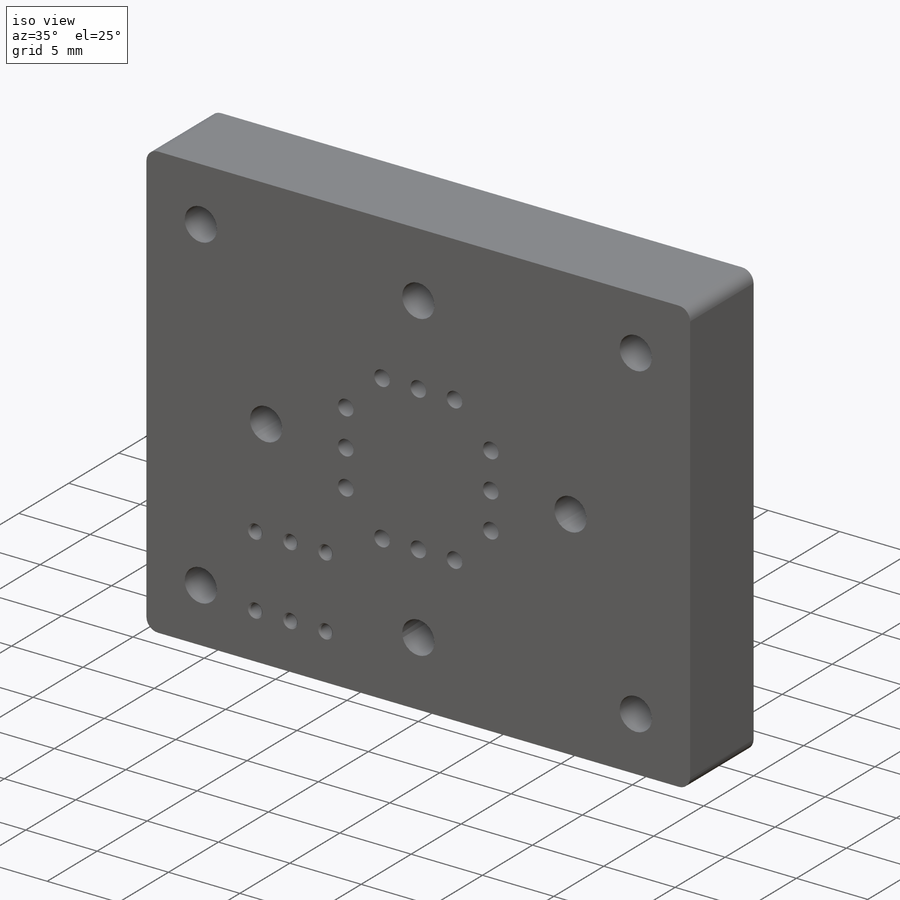
[diagram: iso view]
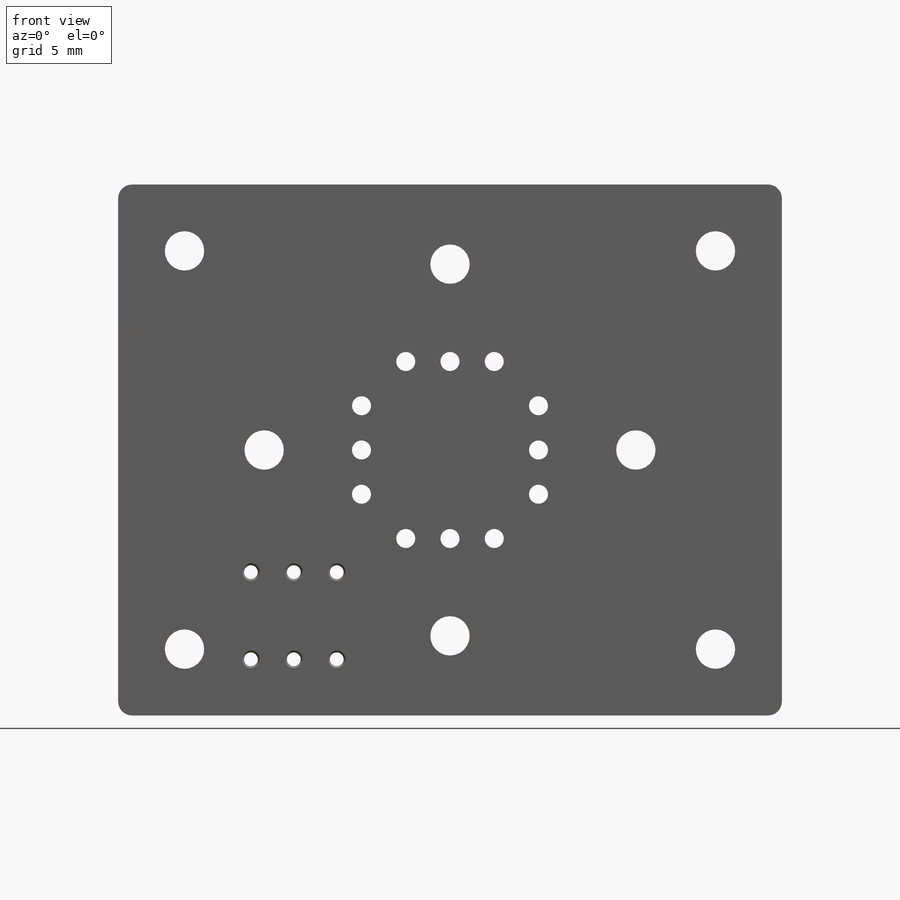
[diagram: front view]
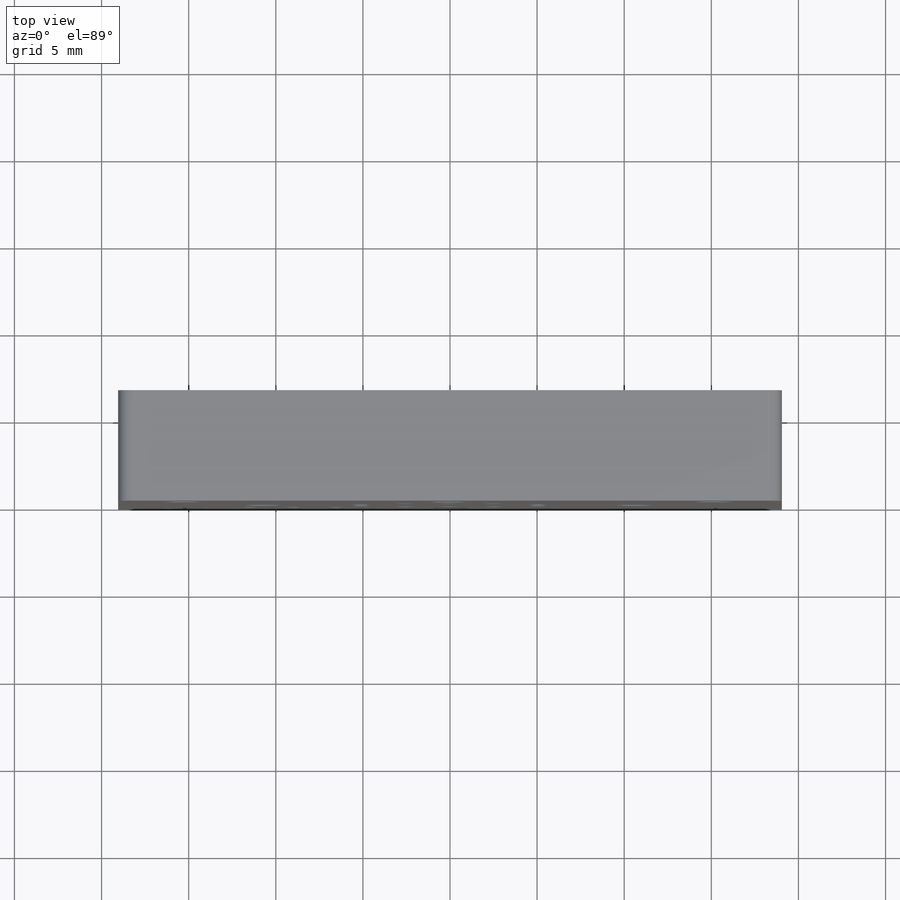
[diagram: top view]
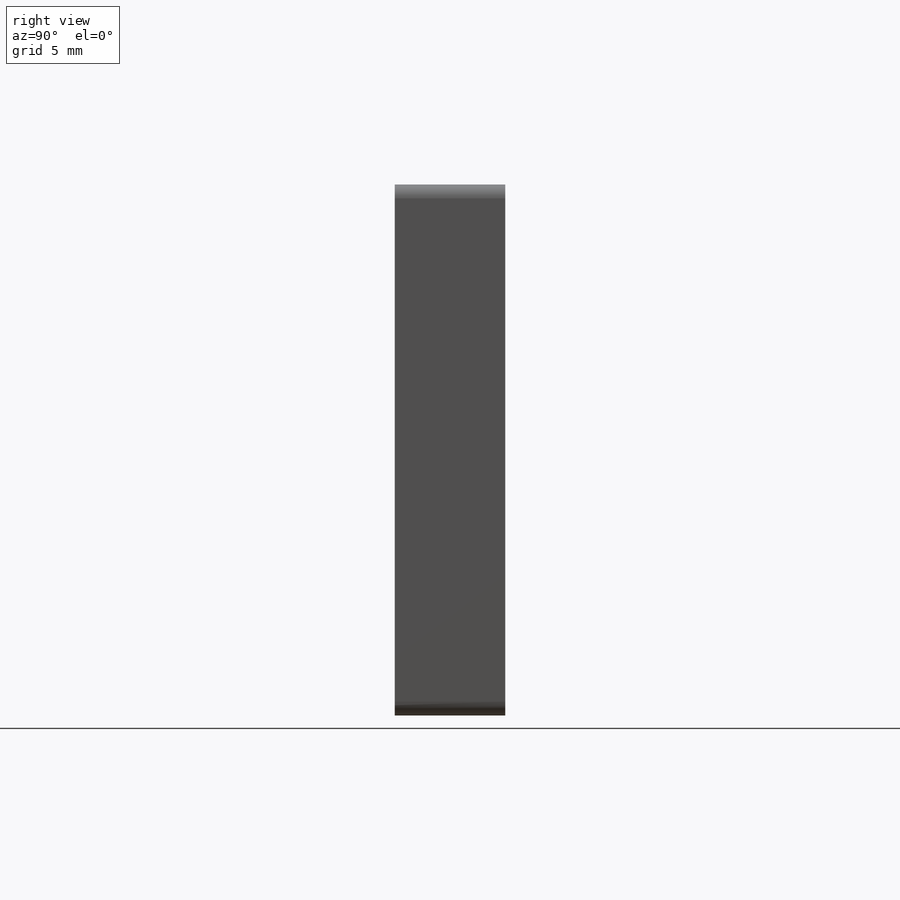
[diagram: right view]
SOLIDWORKS PART (.sldprt)
format: sldprt  version: not decoded by parser v0  size: 444,416 bytes
history: native  units: mm
features: sketch x9, pattern_circular x7, chamfer x6, hole x4, material x1, extrude x1, fillet x1 (+16 scaffold rows collapsed)
feature tree (45):
  scaffold x16  (default folders/planes/origin — collapsed)
  material  "PEEK"
  sketch  "Sketch1"  dims[D1=38.1mm D2=30.48mm]
  extrude  "Boss-Extrude1"  Depth=6.35mm
  hole  "#57 (0.043) Diameter Hole1"  Diameter=1.0922mm Depth=6.35mm
  sketch  "Sketch3"  dims[D1=2.54mm D2=5.08mm]
  sketch  "Sketch2"  dims[hole-wizard template sketch: 59 standard entries collapsed; hole parameters kept: c18.Thru Hole Dia.=1.0922mm c18.Thru Hole Depth=6.35mm]
  hole  "#4-40 Tapped Hole2"  Diameter=2.2606mm Depth=6.35mm
  sketch  "Sketch5"  dims[c1.D1=9.525mm c1.D2=~21.653904mm c2.D2=45.0deg c2.D3=9.525mm c2.D4=9.525mm c3.D3=12.7mm c3.D4=12.7mm c3.D5=12.7mm c3.D2=15.24mm c4.D3=11.43mm c4.D4=~33.261273mm]
  sketch  "Sketch4"  dims[hole-wizard template sketch: 60 standard entries collapsed; hole parameters kept: c18.Thru Tap Drill Depth=6.35mm]
  pattern_circular  "CirPattern1"  Count=4 Angle=90deg
  hole  "1/32 (0.03125) Diameter Hole1"  Diameter=0.79375mm Depth=6.35mm
  sketch  "Sketch9"  dims[D1=6.5024mm D2=7.0104mm D3=2.4638mm D4=5.0038mm]
  sketch  "Sketch8"  dims[hole-wizard template sketch: 46 standard entries collapsed; hole parameters kept: c15.Thru Hole Dia.=~0.79375mm c15.Thru Hole Depth=6.35mm c15.Near C'Sink Dia.=1.016mm c15.D4=~3.666174mm c15.Near C'Sink Angle=90.0deg c15.Far C'Sink Dia.=1.016mm c15.D6=~9.919017mm c15.Far C'Sink Angle=90.0deg]
  hole  "#4-40 Tapped Hole3"  Diameter=2.2606mm Depth=6.35mm
  sketch  "Sketch11"  dims[D1=10.668mm D2=4.0]
  sketch  "Sketch10"  dims[hole-wizard template sketch: 60 standard entries collapsed; hole parameters kept: c18.Thru Tap Drill Depth=6.35mm]
  fillet  "Fillet1"  Radius=0.79375mm
  chamfer  "Chamfer1"  Distance=0.254mm Angle=45deg
  pattern_circular  "Axis2"  Diameter=0.254mm Width=0 Depth=0 StubLength=2.54mm  [2 undecoded]
  chamfer  "CPoint2"  [1 undecoded]
  pattern_circular  "Axis3"  Diameter=0.254mm Width=0 Depth=0 StubLength=2.54mm  [2 undecoded]
  chamfer  "CPoint3"  [1 undecoded]
  pattern_circular  "Axis4"  Diameter=0.254mm Width=0 Depth=0 StubLength=2.54mm  [2 undecoded]
  chamfer  "CPoint4"  [1 undecoded]
  pattern_circular  "Axis5"  Diameter=0.254mm Width=0 Depth=0 StubLength=2.54mm  [2 undecoded]
  chamfer  "CPoint5"  [1 undecoded]
  pattern_circular  "Axis6"  Diameter=0.254mm Width=0 Depth=0 StubLength=2.54mm  [2 undecoded]
  chamfer  "CPoint6"  [1 undecoded]
  pattern_circular  "Axis7"  Diameter=0.254mm Width=0 Depth=0 StubLength=2.54mm  [2 undecoded]
decode coverage: 23 of 28 modeling features carry decoded parameters
note: ~ marks probable driven/reference dimensions
note: 17 parameter values undecoded
summary: no parameter record found for 5 features; Diameter pulled from absorbed wizard sketch
note: suppression state not decoded; provenance and decode notes live in map.json
